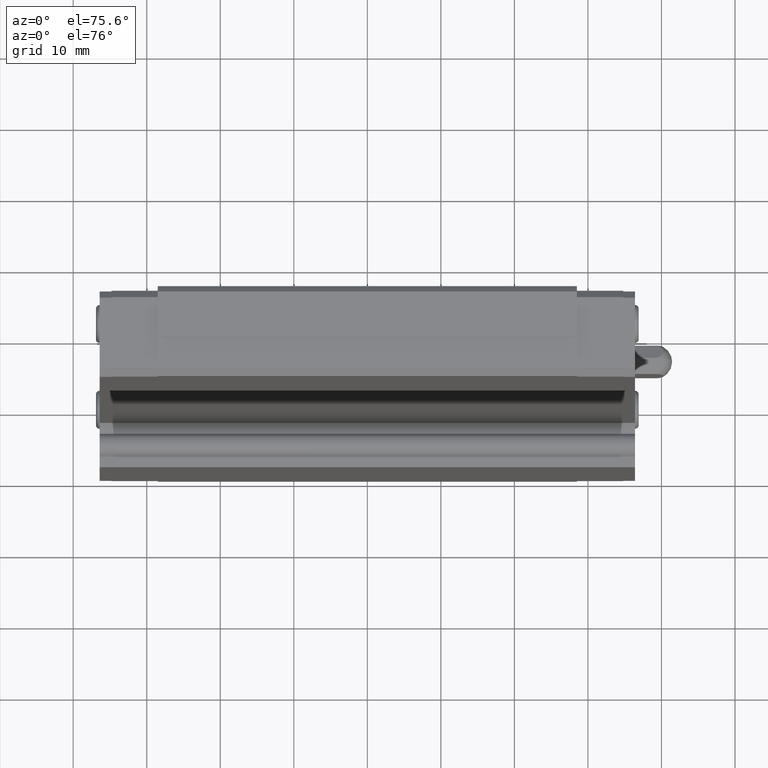
[diagram: clean part render]
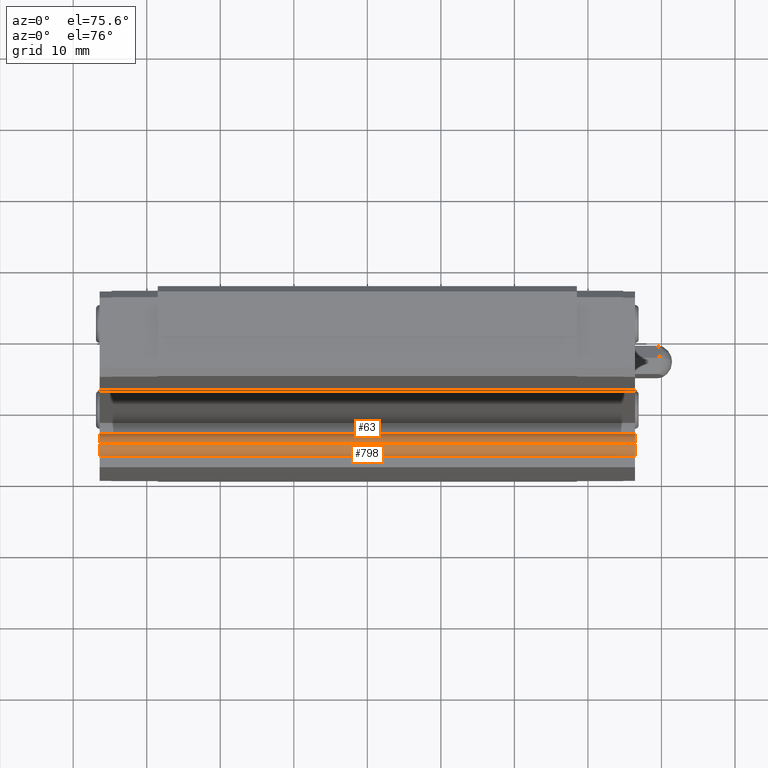
[diagram: same view with one multi-face feature highlighted, each face labeled with its STEP entity id]
A machine part, auxiliary view. The highlighted faces form ONE feature: a constant-radius fillet chain: 2 tangent blend faces with common blend radius 1.7 mm. The faces share edges in the B-rep.
Their STEP definitions:
[1] entity #798 (Cylinder):
#784 = ORIENTED_EDGE ( 'NONE', *, *, #828, .T. ) ;
#791 = VERTEX_POINT ( 'NONE', #2195 ) ;
#798 = ADVANCED_FACE ( 'NONE', ( #2185 ), #2184, .T. ) ;
#799 = ORIENTED_EDGE ( 'NONE', *, *, #844, .T. ) ;
#827 = VERTEX_POINT ( 'NONE', #2250 ) ;
#828 = EDGE_CURVE ( 'NONE', #827, #791, #2249, .T. ) ;
#829 = ORIENTED_EDGE ( 'NONE', *, *, #830, .F. ) ;
#830 = EDGE_CURVE ( 'NONE', #851, #838, #2245, .T. ) ;
#838 = VERTEX_POINT ( 'NONE', #2287 ) ;
#844 = EDGE_CURVE ( 'NONE', #851, #827, #2275, .T. ) ;
#845 = ORIENTED_EDGE ( 'NONE', *, *, #859, .F. ) ;
#851 = VERTEX_POINT ( 'NONE', #2318 ) ;
#858 = EDGE_LOOP ( 'NONE', ( #799, #784, #845, #829 ) ) ;
#859 = EDGE_CURVE ( 'NONE', #838, #791, #2310, .T. ) ;
#2179 = DIRECTION ( 'NONE',  ( 0.0000000000000000000, 0.0000000000000000000, 1.000000000000000000 ) ) ;
#2180 = DIRECTION ( 'NONE',  ( -1.000000000000000000, 0.0000000000000000000, 0.0000000000000000000 ) ) ;
#2181 = CARTESIAN_POINT ( 'NONE',  ( 28.50000000000000000, 3.100000000000000100, -21.62000000000000100 ) ) ;
#2182 = AXIS2_PLACEMENT_3D ( 'NONE', #2181, #2180, #2179 ) ;
#2184 = CYLINDRICAL_SURFACE ( 'NONE', #2182, 1.700000000000000200 ) ;
#2185 = FACE_OUTER_BOUND ( 'NONE', #858, .T. ) ;
#2195 = CARTESIAN_POINT ( 'NONE',  ( -36.39999999999999100, 3.100000000000000100, -19.92000000000000200 ) ) ;
#2242 = DIRECTION ( 'NONE',  ( -1.000000000000000000, 0.0000000000000000000, 0.0000000000000000000 ) ) ;
#2243 = VECTOR ( 'NONE', #2242, 1000.000000000000000 ) ;
#2244 = CARTESIAN_POINT ( 'NONE',  ( 28.50000000000000000, 1.517091285007247500, -21.00000000000000400 ) ) ;
#2245 = LINE ( 'NONE', #2244, #2243 ) ;
#2246 = DIRECTION ( 'NONE',  ( -1.000000000000000000, 0.0000000000000000000, 0.0000000000000000000 ) ) ;
#2247 = VECTOR ( 'NONE', #2246, 1000.000000000000000 ) ;
#2248 = CARTESIAN_POINT ( 'NONE',  ( 28.50000000000000000, 3.100000000000000100, -19.92000000000000200 ) ) ;
#2249 = LINE ( 'NONE', #2248, #2247 ) ;
#2250 = CARTESIAN_POINT ( 'NONE',  ( 36.39999999999999100, 3.100000000000000100, -19.92000000000000200 ) ) ;
#2271 = DIRECTION ( 'NONE',  ( 0.0000000000000000000, 0.0000000000000000000, 1.000000000000000000 ) ) ;
#2272 = DIRECTION ( 'NONE',  ( -1.000000000000000000, 0.0000000000000000000, 0.0000000000000000000 ) ) ;
#2273 = CARTESIAN_POINT ( 'NONE',  ( 36.39999999999999100, 3.100000000000000100, -21.62000000000000100 ) ) ;
#2274 = AXIS2_PLACEMENT_3D ( 'NONE', #2273, #2272, #2271 ) ;
#2275 = CIRCLE ( 'NONE', #2274, 1.700000000000000200 ) ;
#2287 = CARTESIAN_POINT ( 'NONE',  ( -36.39999999999999100, 1.517091285007247500, -21.00000000000000400 ) ) ;
#2306 = DIRECTION ( 'NONE',  ( 0.0000000000000000000, 0.0000000000000000000, 1.000000000000000000 ) ) ;
#2307 = DIRECTION ( 'NONE',  ( -1.000000000000000000, 0.0000000000000000000, 0.0000000000000000000 ) ) ;
#2308 = CARTESIAN_POINT ( 'NONE',  ( -36.39999999999999100, 3.100000000000000100, -21.62000000000000100 ) ) ;
#2309 = AXIS2_PLACEMENT_3D ( 'NONE', #2308, #2307, #2306 ) ;
#2310 = CIRCLE ( 'NONE', #2309, 1.700000000000000200 ) ;
#2318 = CARTESIAN_POINT ( 'NONE',  ( 36.39999999999999100, 1.517091285007247500, -21.00000000000000400 ) ) ;
[2] entity #63 (Cylinder):
#44 = EDGE_CURVE ( 'NONE', #877, #339, #946, .T. ) ;
#58 = ORIENTED_EDGE ( 'NONE', *, *, #411, .F. ) ;
#62 = ORIENTED_EDGE ( 'NONE', *, *, #44, .T. ) ;
#63 = ADVANCED_FACE ( 'NONE', ( #976 ), #975, .T. ) ;
#65 = ORIENTED_EDGE ( 'NONE', *, *, #879, .T. ) ;
#66 = EDGE_LOOP ( 'NONE', ( #70, #65, #62, #58 ) ) ;
#70 = ORIENTED_EDGE ( 'NONE', *, *, #828, .F. ) ;
#339 = VERTEX_POINT ( 'NONE', #1366 ) ;
#411 = EDGE_CURVE ( 'NONE', #791, #339, #1515, .T. ) ;
#791 = VERTEX_POINT ( 'NONE', #2195 ) ;
#827 = VERTEX_POINT ( 'NONE', #2250 ) ;
#828 = EDGE_CURVE ( 'NONE', #827, #791, #2249, .T. ) ;
#877 = VERTEX_POINT ( 'NONE', #2345 ) ;
#879 = EDGE_CURVE ( 'NONE', #827, #877, #2344, .T. ) ;
#943 = DIRECTION ( 'NONE',  ( -1.000000000000000000, 0.0000000000000000000, 0.0000000000000000000 ) ) ;
#944 = VECTOR ( 'NONE', #943, 1000.000000000000000 ) ;
#945 = CARTESIAN_POINT ( 'NONE',  ( 28.50000000000000000, 4.682908714992752400, -21.00000000000000400 ) ) ;
#946 = LINE ( 'NONE', #945, #944 ) ;
#975 = CYLINDRICAL_SURFACE ( 'NONE', #1038, 1.700000000000000200 ) ;
#976 = FACE_OUTER_BOUND ( 'NONE', #66, .T. ) ;
#1035 = DIRECTION ( 'NONE',  ( 0.0000000000000000000, 0.0000000000000000000, 1.000000000000000000 ) ) ;
#1036 = DIRECTION ( 'NONE',  ( -1.000000000000000000, 0.0000000000000000000, 0.0000000000000000000 ) ) ;
#1037 = CARTESIAN_POINT ( 'NONE',  ( 28.50000000000000000, 3.100000000000000100, -21.62000000000000100 ) ) ;
#1038 = AXIS2_PLACEMENT_3D ( 'NONE', #1037, #1036, #1035 ) ;
#1366 = CARTESIAN_POINT ( 'NONE',  ( -36.39999999999999100, 4.682908714992752400, -21.00000000000000400 ) ) ;
#1511 = DIRECTION ( 'NONE',  ( 0.0000000000000000000, 0.0000000000000000000, 1.000000000000000000 ) ) ;
#1512 = DIRECTION ( 'NONE',  ( -1.000000000000000000, 0.0000000000000000000, 0.0000000000000000000 ) ) ;
#1513 = CARTESIAN_POINT ( 'NONE',  ( -36.39999999999999100, 3.100000000000000100, -21.62000000000000100 ) ) ;
#1514 = AXIS2_PLACEMENT_3D ( 'NONE', #1513, #1512, #1511 ) ;
#1515 = CIRCLE ( 'NONE', #1514, 1.700000000000000200 ) ;
#2195 = CARTESIAN_POINT ( 'NONE',  ( -36.39999999999999100, 3.100000000000000100, -19.92000000000000200 ) ) ;
#2246 = DIRECTION ( 'NONE',  ( -1.000000000000000000, 0.0000000000000000000, 0.0000000000000000000 ) ) ;
#2247 = VECTOR ( 'NONE', #2246, 1000.000000000000000 ) ;
#2248 = CARTESIAN_POINT ( 'NONE',  ( 28.50000000000000000, 3.100000000000000100, -19.92000000000000200 ) ) ;
#2249 = LINE ( 'NONE', #2248, #2247 ) ;
#2250 = CARTESIAN_POINT ( 'NONE',  ( 36.39999999999999100, 3.100000000000000100, -19.92000000000000200 ) ) ;
#2340 = DIRECTION ( 'NONE',  ( 0.0000000000000000000, 0.0000000000000000000, 1.000000000000000000 ) ) ;
#2341 = DIRECTION ( 'NONE',  ( -1.000000000000000000, 0.0000000000000000000, 0.0000000000000000000 ) ) ;
#2342 = CARTESIAN_POINT ( 'NONE',  ( 36.39999999999999100, 3.100000000000000100, -21.62000000000000100 ) ) ;
#2343 = AXIS2_PLACEMENT_3D ( 'NONE', #2342, #2341, #2340 ) ;
#2344 = CIRCLE ( 'NONE', #2343, 1.700000000000000200 ) ;
#2345 = CARTESIAN_POINT ( 'NONE',  ( 36.39999999999999100, 4.682908714992752400, -21.00000000000000400 ) ) ;